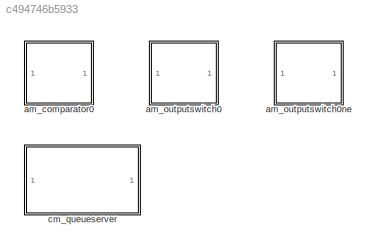
MODEL slx_c494746b5933
KIND library
CONFIG AbsTol = auto
CONFIG EnableMultiTasking = off
CONFIG FixedStep = auto
CONFIG MaxStep = auto
CONFIG MinStep = auto
CONFIG RelTol = 1e-3
CONFIG SampleTimeConstraint = Unconstrained
CONFIG SolverName = VariableStepAuto
CONFIG StartTime = 0.0
CONFIG StopTime = 10.0
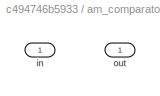
BLOCK [SubSystem] am_comparator0
  ShowPortLabels = none
  TreatAsAtomicUnit = on
BLOCK [Inport] am_comparator0/in
BLOCK [Outport] am_comparator0/out
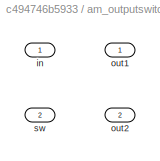
BLOCK [SubSystem] am_outputswitch0
  ShowPortLabels = none
  TreatAsAtomicUnit = on
BLOCK [Inport] am_outputswitch0/in
BLOCK [Outport] am_outputswitch0/out1
BLOCK [Outport] am_outputswitch0/out2
  Port = 2
BLOCK [Inport] am_outputswitch0/sw
  Port = 2
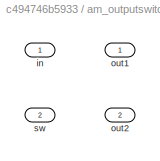
BLOCK [SubSystem] am_outputswitch0ne
  ShowPortLabels = none
  TreatAsAtomicUnit = on
BLOCK [Inport] am_outputswitch0ne/in
BLOCK [Outport] am_outputswitch0ne/out1
BLOCK [Outport] am_outputswitch0ne/out2
  Port = 2
BLOCK [Inport] am_outputswitch0ne/sw
  Port = 2
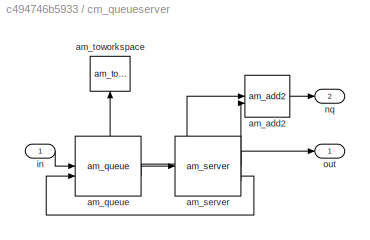
BLOCK [SubSystem] cm_queueserver
  PortSchema = {"entries":[{"content":{"sides":[{"content":{"connectorIds":["In1"]},"type":"ConnectorPlacement.EquallySpacedRectSide","uuid":"07fa0e51-8843-4ac9-8e94-884ae9a89d36"},{"content":{"connectorIds":["Out1"],"side":"RIGHT"},"type":"ConnectorPlacement.EquallySpacedRectSide","uuid":"0131ce69-7449-4362-9cfd-88c0df269334"},{"content":{"connectorIds":["Out2"],"side":"TOP"},"type":"ConnectorPlacement.EquallyS...<+246ch>
  ShowPortLabels = none
BLOCK [Reference] cm_queueserver/am_add2  REF=StdLib/am_add2
  SourceBlock = StdLib/am_add2
  SourceProductName = Math Operations
  SourceType = Add2
BLOCK [Reference] cm_queueserver/am_queue  REF=StdLib/am_queue
  SourceBlock = StdLib/am_queue
  SourceProductName = Logistics
  SourceType = Queue
BLOCK [Reference] cm_queueserver/am_server  REF=StdLib/am_server
  SourceBlock = StdLib/am_server
  SourceProductName = Logistics
  SourceType = Server
BLOCK [Reference] cm_queueserver/am_toworkspace  REF=StdLib/am_toworkspace
  NameLocation = right
  SourceBlock = StdLib/am_toworkspace
  SourceType = ToWorkspace
BLOCK [Inport] cm_queueserver/in
BLOCK [Outport] cm_queueserver/nq
  Port = 2
BLOCK [Outport] cm_queueserver/out
LINE cm_queueserver/am_add2:1 -> cm_queueserver/nq:1
LINE cm_queueserver/am_queue:1 -> cm_queueserver/am_server:1
NET cm_queueserver/am_queue:2 -> cm_queueserver/am_add2:1, cm_queueserver/am_toworkspace:1
LINE cm_queueserver/am_server:1 -> cm_queueserver/out:1
LINE cm_queueserver/am_server:2 -> cm_queueserver/am_queue:2
LINE cm_queueserver/am_server:3 -> cm_queueserver/am_add2:2
LINE cm_queueserver/in:1 -> cm_queueserver/am_queue:1
note: NET lines group one-source signal fan-out (src -> all destinations, sorted); 1:1 wires keep LINE
